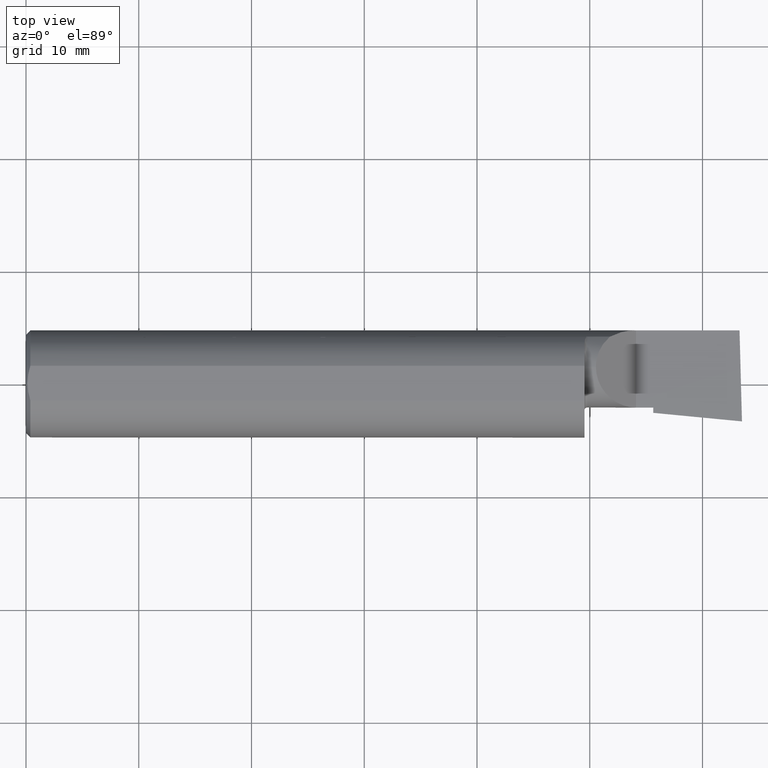
[diagram: clean part render]
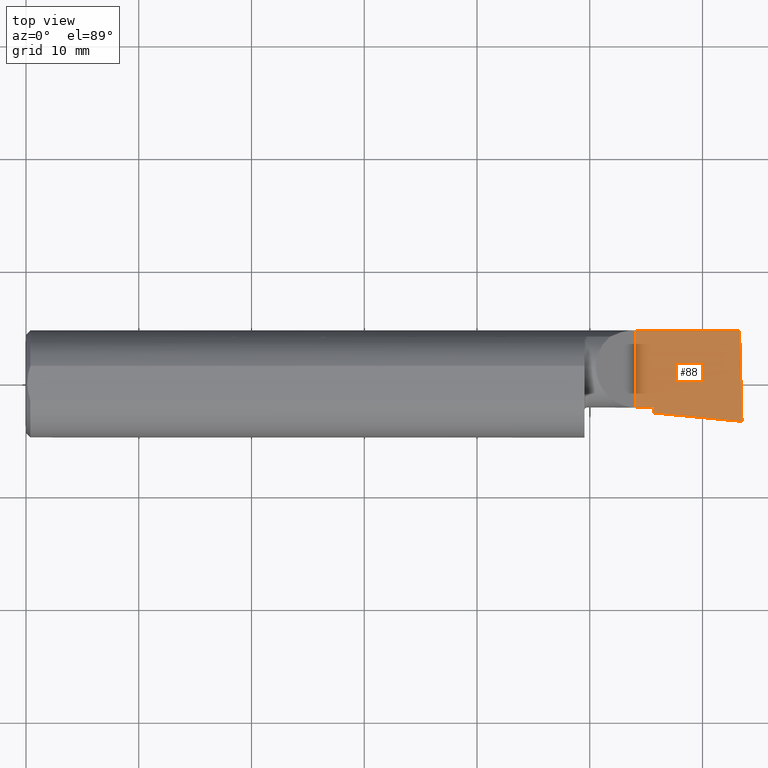
[diagram: same view with one face highlighted and labeled with its STEP entity id]
A machine part, top view. The second image highlights one B-rep face of the part: STEP entity #88.
In plain terms, the highlighted planar face has unit normal (-0, 0, -1).
Its self-contained STEP definition (entity closure, byte-faithful):
#5 = CARTESIAN_POINT ( 'NONE',  ( 2.503195014871369306, -0.2499144076575001427, 1.702373413063153914E-16 ) ) ;
#6 = VERTEX_POINT ( 'NONE', #496 ) ;
#31 = CARTESIAN_POINT ( 'NONE',  ( 8.889029578031509911E-32, -0.08265000000000001512, 5.644462552563044730E-16 ) ) ;
#44 = VERTEX_POINT ( 'NONE', #166 ) ;
#55 = CARTESIAN_POINT ( 'NONE',  ( 2.500000000000000000, -0.2500000000000000555, 1.707404996040164512E-16 ) ) ;
#87 = VECTOR ( 'NONE', #126, 39.37007874015748143 ) ;
#88 = ADVANCED_FACE ( 'NONE', ( #232 ), #341, .F. ) ;
#90 = LINE ( 'NONE', #31, #305 ) ;
#103 = EDGE_LOOP ( 'NONE', ( #696, #420, #471, #337, #578, #190 ) ) ;
#123 = LINE ( 'NONE', #5, #400 ) ;
#126 = DIRECTION ( 'NONE',  ( 1.000000000000000000, 0.000000000000000000, 0.000000000000000000 ) ) ;
#157 = EDGE_CURVE ( 'NONE', #6, #563, #123, .T. ) ;
#159 = CARTESIAN_POINT ( 'NONE',  ( 2.129999999999999893, -0.2500000000000000555, 2.290089514405551589E-16 ) ) ;
#166 = CARTESIAN_POINT ( 'NONE',  ( 2.129999999999999893, 0.1873499999999998222, 2.290089514405551589E-16 ) ) ;
#190 = ORIENTED_EDGE ( 'NONE', *, *, #449, .T. ) ;
#196 = VERTEX_POINT ( 'NONE', #722 ) ;
#209 = VECTOR ( 'NONE', #668, 39.37007874015748143 ) ;
#213 = AXIS2_PLACEMENT_3D ( 'NONE', #55, #411, #228 ) ;
#216 = CARTESIAN_POINT ( 'NONE',  ( 2.500000000000000444, -0.1306500000000002382, 5.634436486932542518E-16 ) ) ;
#228 = DIRECTION ( 'NONE',  ( -1.000000000000000000, 0.000000000000000000, 1.574823022609152926E-16 ) ) ;
#232 = FACE_OUTER_BOUND ( 'NONE', #103, .T. ) ;
#254 = LINE ( 'NONE', #320, #87 ) ;
#269 = LINE ( 'NONE', #622, #270 ) ;
#270 = VECTOR ( 'NONE', #495, 39.37007874015748143 ) ;
#274 = CARTESIAN_POINT ( 'NONE',  ( 2.511386526799095353, -0.1317463978277607084, 1.689473231489393182E-16 ) ) ;
#305 = VECTOR ( 'NONE', #566, 39.37007874015748143 ) ;
#320 = CARTESIAN_POINT ( 'NONE',  ( 8.889029578031509911E-32, 0.1873499999999999610, 5.644462552563044730E-16 ) ) ;
#337 = ORIENTED_EDGE ( 'NONE', *, *, #367, .T. ) ;
#341 = PLANE ( 'NONE',  #213 ) ;
#367 = EDGE_CURVE ( 'NONE', #554, #543, #90, .T. ) ;
#400 = VECTOR ( 'NONE', #755, 39.37007874015748854 ) ;
#411 = DIRECTION ( 'NONE',  ( -1.574823022609152926E-16, 0.000000000000000000, -1.000000000000000000 ) ) ;
#420 = ORIENTED_EDGE ( 'NONE', *, *, #692, .F. ) ;
#449 = EDGE_CURVE ( 'NONE', #196, #563, #606, .T. ) ;
#465 = EDGE_CURVE ( 'NONE', #554, #44, #733, .T. ) ;
#471 = ORIENTED_EDGE ( 'NONE', *, *, #465, .F. ) ;
#495 = DIRECTION ( 'NONE',  ( 0.000000000000000000, -1.000000000000000000, 0.000000000000000000 ) ) ;
#496 = CARTESIAN_POINT ( 'NONE',  ( 2.491480989600745932, 0.1873499999999998777, 1.720566076660925670E-16 ) ) ;
#503 = EDGE_CURVE ( 'NONE', #543, #196, #269, .T. ) ;
#505 = CARTESIAN_POINT ( 'NONE',  ( 2.189999999999999947, -0.08265000000000005675, 5.644462552563045716E-16 ) ) ;
#543 = VERTEX_POINT ( 'NONE', #505 ) ;
#554 = VERTEX_POINT ( 'NONE', #607 ) ;
#563 = VERTEX_POINT ( 'NONE', #216 ) ;
#566 = DIRECTION ( 'NONE',  ( 1.000000000000000000, 0.000000000000000000, 0.000000000000000000 ) ) ;
#578 = ORIENTED_EDGE ( 'NONE', *, *, #503, .T. ) ;
#606 = LINE ( 'NONE', #274, #209 ) ;
#607 = CARTESIAN_POINT ( 'NONE',  ( 2.129999999999999893, -0.08265000000000014002, 2.290089514405551589E-16 ) ) ;
#615 = DIRECTION ( 'NONE',  ( -0.000000000000000000, 1.000000000000000000, -0.000000000000000000 ) ) ;
#622 = CARTESIAN_POINT ( 'NONE',  ( 2.189999999999999947, -0.2500000000000000555, 2.195600133049002074E-16 ) ) ;
#632 = VECTOR ( 'NONE', #615, 39.37007874015748143 ) ;
#668 = DIRECTION ( 'NONE',  ( 0.9953961983671787417, -0.09584575252022417557, -1.557096167792191613E-16 ) ) ;
#692 = EDGE_CURVE ( 'NONE', #44, #6, #254, .T. ) ;
#696 = ORIENTED_EDGE ( 'NONE', *, *, #157, .F. ) ;
#722 = CARTESIAN_POINT ( 'NONE',  ( 2.189999999999999947, -0.1008003950587631620, 5.645107768157793585E-16 ) ) ;
#733 = LINE ( 'NONE', #159, #632 ) ;
#755 = DIRECTION ( 'NONE',  ( 0.02677973311238981968, -0.9996413586354002678, -4.159071407961027197E-18 ) ) ;